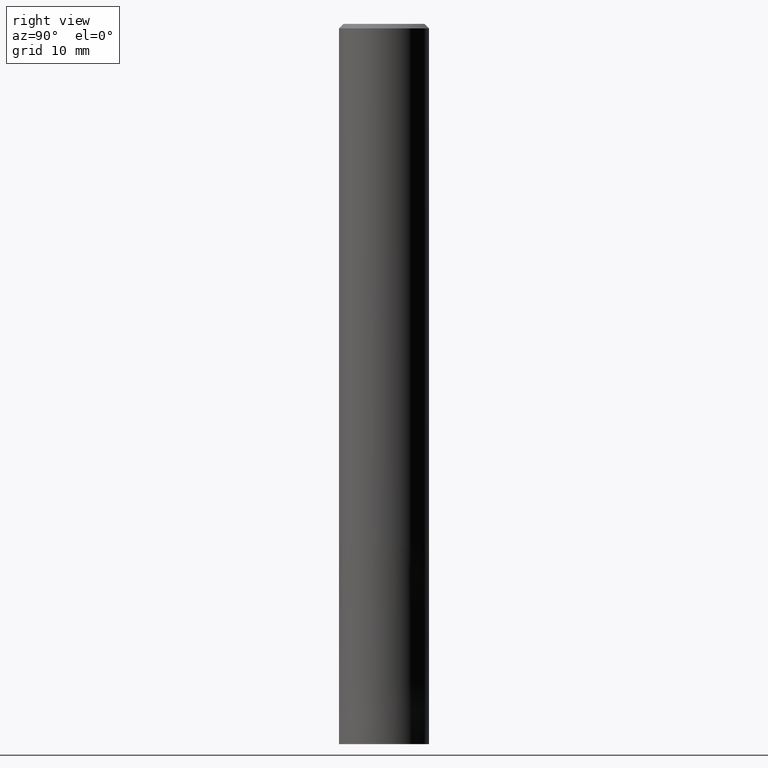
[diagram: clean part render]
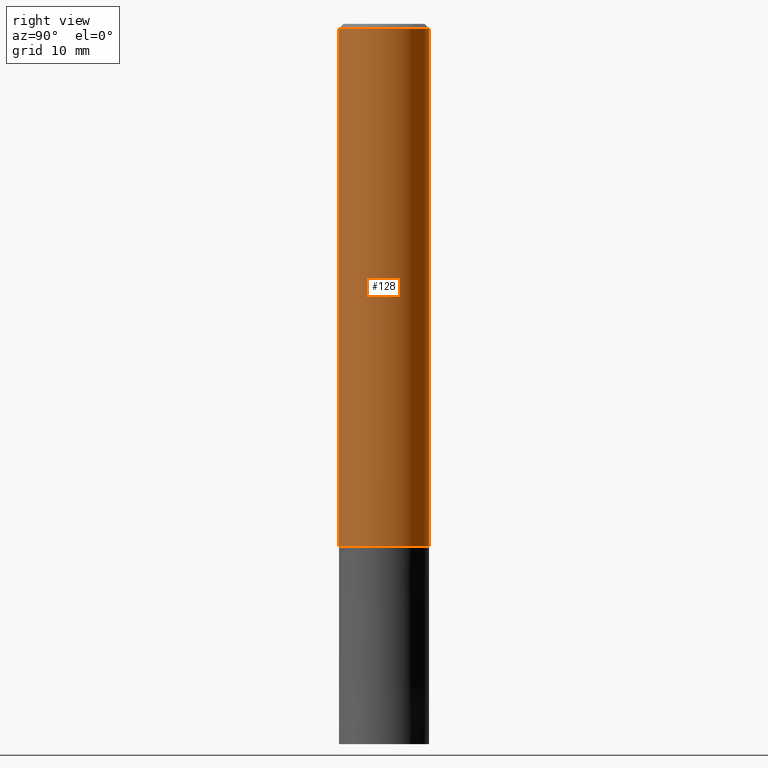
[diagram: same view with one face highlighted and labeled with its STEP entity id]
A machine part, right view. The second image highlights one B-rep face of the part: STEP entity #128.
In plain terms, the highlighted cylindrical surface (partial cylindrical patch) has radius 5 mm, axis along (-0, -0, 1).
Its self-contained STEP definition (entity closure, byte-faithful):
#62=EDGE_CURVE('',#108,#86,#150,.T.);
#84=VERTEX_POINT('',#174);
#86=VERTEX_POINT('',#176);
#88=EDGE_CURVE('',#84,#94,#178,.T.);
#94=VERTEX_POINT('',#185);
#96=EDGE_CURVE('',#86,#84,#187,.T.);
#102=EDGE_CURVE('',#108,#94,#194,.T.);
#108=VERTEX_POINT('',#200);
#128=ADVANCED_FACE('',(#225),#226,.T.);
#150=LINE('',#241,#242);
#174=CARTESIAN_POINT('',(6.12303176911189E-016,-5.0,-58.0));
#176=CARTESIAN_POINT('',(0.0,5.0,-58.0));
#178=LINE('',#282,#283);
#185=CARTESIAN_POINT('',(6.12303176911189E-016,-5.0,-0.5));
#187=CIRCLE('',#294,5.0);
#194=CIRCLE('',#302,5.0);
#200=CARTESIAN_POINT('',(0.0,5.0,-0.5));
#225=FACE_OUTER_BOUND('',#333,.T.);
#226=CYLINDRICAL_SURFACE('',#334,5.0);
#241=CARTESIAN_POINT('',(-6.12303176911189E-016,5.0,-29.25));
#242=VECTOR('',#340,1.0);
#282=CARTESIAN_POINT('',(6.12303176911189E-016,-5.0,-29.25));
#283=VECTOR('',#367,1.0);
#294=AXIS2_PLACEMENT_3D('',#379,#380,#381);
#302=AXIS2_PLACEMENT_3D('',#390,#391,#392);
#333=EDGE_LOOP('',(#434,#435,#436,#437));
#334=AXIS2_PLACEMENT_3D('',#438,#439,#440);
#340=DIRECTION('',(0.0,0.0,-1.0));
#367=DIRECTION('',(-0.0,-0.0,1.0));
#379=CARTESIAN_POINT('',(0.0,0.0,-58.0));
#380=DIRECTION('',(0.0,0.0,-1.0));
#381=DIRECTION('',(0.0,1.0,0.0));
#390=CARTESIAN_POINT('',(0.0,0.0,-0.5));
#391=DIRECTION('',(0.0,0.0,-1.0));
#392=DIRECTION('',(0.0,1.0,0.0));
#434=ORIENTED_EDGE('',*,*,#62,.F.);
#435=ORIENTED_EDGE('',*,*,#102,.T.);
#436=ORIENTED_EDGE('',*,*,#88,.F.);
#437=ORIENTED_EDGE('',*,*,#96,.F.);
#438=CARTESIAN_POINT('',(0.0,0.0,-29.25));
#439=DIRECTION('',(-0.0,-0.0,1.0));
#440=DIRECTION('',(0.0,1.0,0.0));